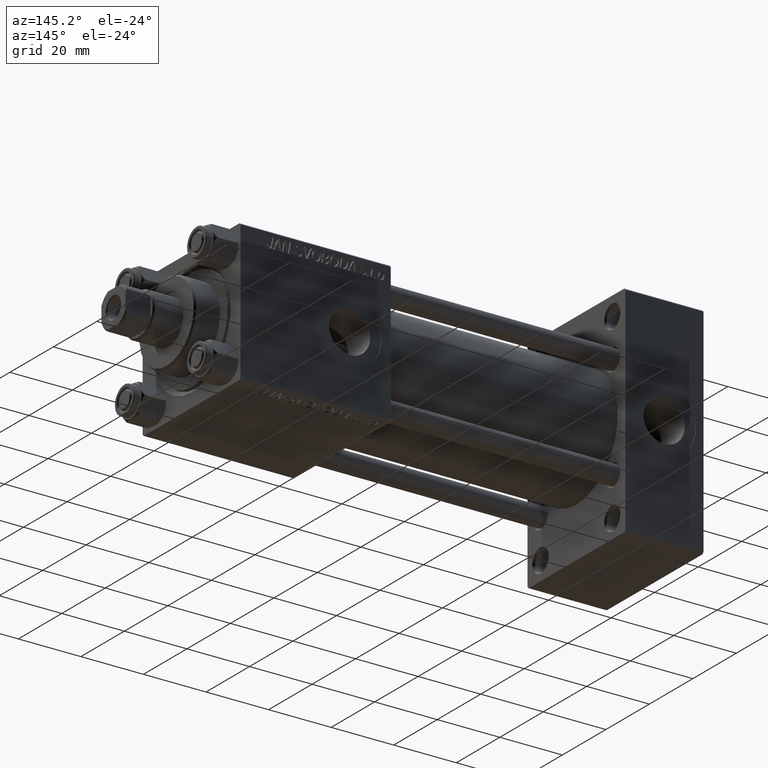
[diagram: clean part render]
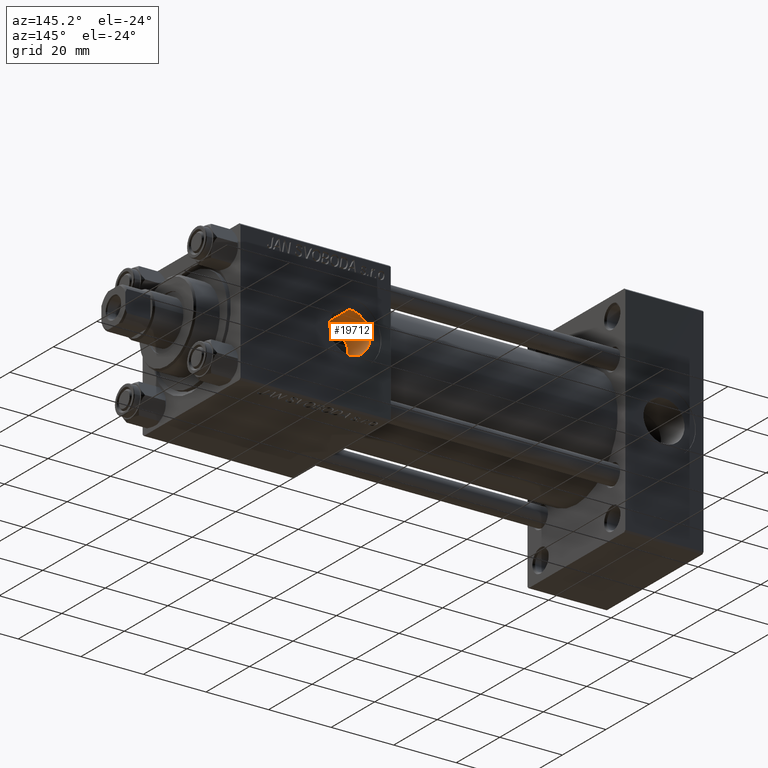
[diagram: same view with one face highlighted and labeled with its STEP entity id]
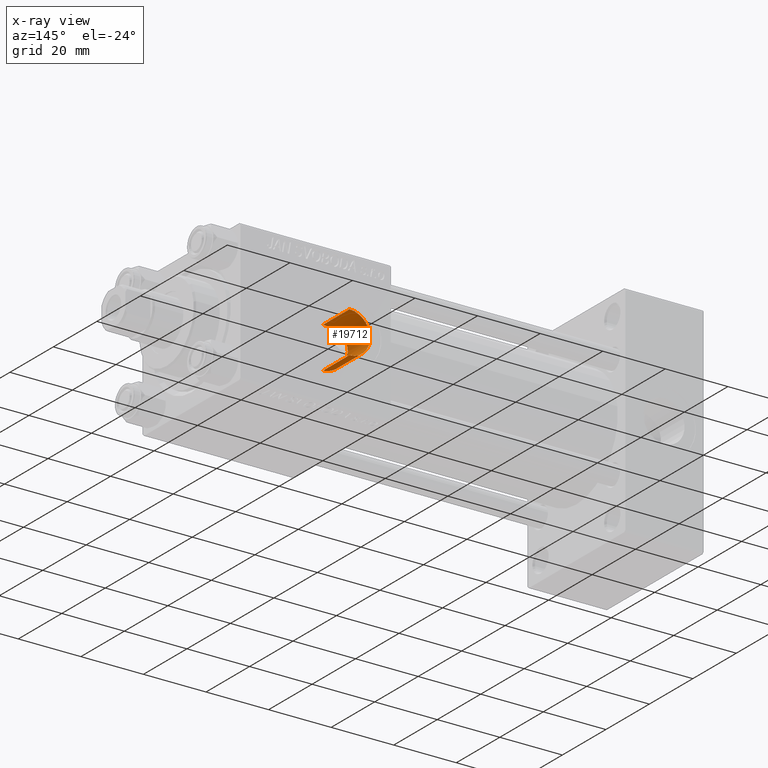
[diagram: x-ray of the same camera — body ghosted, the highlighted face saturated]
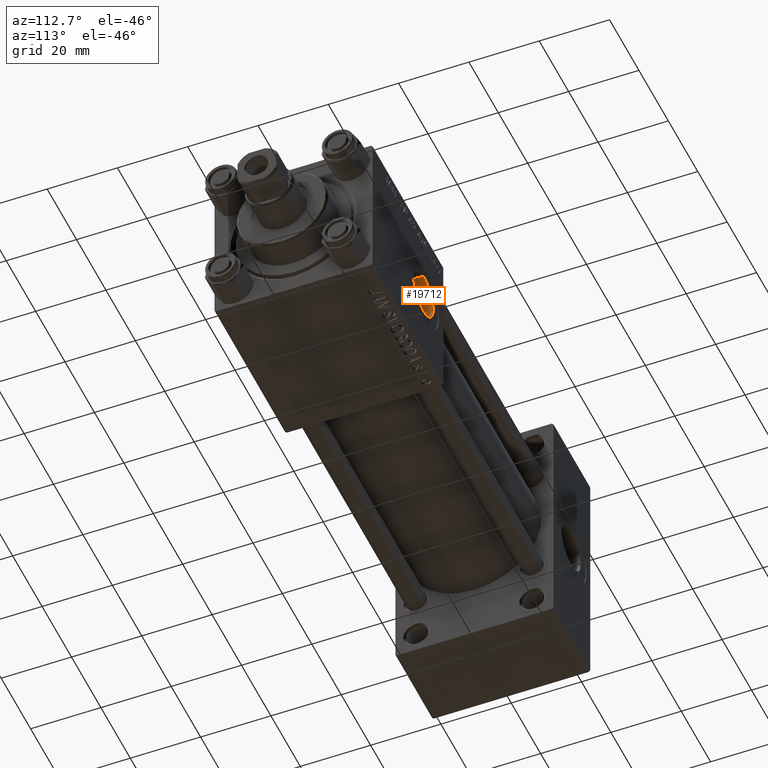
[diagram: same view with one face highlighted and labeled with its STEP entity id]
A machine part, auxiliary view. The second image highlights one B-rep face of the part: STEP entity #19712.
The next image is the same camera in x-ray: the body ghosted, the highlighted face saturated — about 0% of this face is hidden behind the body in this view.
A second angle (auxiliary view) of the same face is appended — the face is thin or edge-on in the first view.
In plain terms, the highlighted cylindrical surface (edge-blend (fillet) strip) has radius 6.58 mm, axis along (0, 1, 0).
Its self-contained STEP definition (entity closure, byte-faithful):
#731 = CARTESIAN_POINT ( 'NONE',  ( 109.6778844470711789, 10.56555453414760493, -5.695588259402676101 ) ) ;
#842 = EDGE_CURVE ( 'NONE', #35096, #30667, #21167, .T. ) ;
#973 = CARTESIAN_POINT ( 'NONE',  ( 106.4202108594641345, 11.99988437873642511, -0.4415083905740621595 ) ) ;
#1225 = CARTESIAN_POINT ( 'NONE',  ( 107.7822453497095125, 11.30859472950852584, -4.031762314489304444 ) ) ;
#1474 = CARTESIAN_POINT ( 'NONE',  ( 109.6939754610107229, 10.56415267499855304, 5.693150710628732014 ) ) ;
#1720 = CARTESIAN_POINT ( 'NONE',  ( 111.9026555007573904, 10.09272257990949839, -6.491501553408994596 ) ) ;
#2099 = DIRECTION ( 'NONE',  ( 0.000000000000000000, 0.000000000000000000, 1.000000000000000000 ) ) ;
#3030 = ORIENTED_EDGE ( 'NONE', *, *, #842, .F. ) ;
#5265 = CARTESIAN_POINT ( 'NONE',  ( 107.1050680583519039, 11.63756389590208862, 2.955633420251075894 ) ) ;
#5372 = DIRECTION ( 'NONE',  ( -0.000000000000000000, 1.000000000000000000, -0.000000000000000000 ) ) ;
#5511 = CARTESIAN_POINT ( 'NONE',  ( 110.2609984649942874, 10.40045460118916054, 5.986622394672212799 ) ) ;
#5755 = CARTESIAN_POINT ( 'NONE',  ( 107.3033527628750932, 11.53738015798572114, -3.320885605816854103 ) ) ;
#5862 = DIRECTION ( 'NONE',  ( 0.000000000000000000, 0.000000000000000000, 1.000000000000000000 ) ) ;
#6003 = DIRECTION ( 'NONE',  ( -0.000000000000000000, 1.000000000000000000, -0.000000000000000000 ) ) ;
#8805 = CARTESIAN_POINT ( 'NONE',  ( 108.9808194095023595, 10.80498217344098855, 5.227144681522187142 ) ) ;
#9054 = CARTESIAN_POINT ( 'NONE',  ( 112.1190907691257195, 10.07132008303893400, -6.524508665183240907 ) ) ;
#9163 = FACE_OUTER_BOUND ( 'NONE', #10479, .T. ) ;
#9958 = AXIS2_PLACEMENT_3D ( 'NONE', #40005, #5372, #5862 ) ;
#10479 = EDGE_LOOP ( 'NONE', ( #45542, #49099, #18895, #3030 ) ) ;
#12345 = CARTESIAN_POINT ( 'NONE',  ( 108.4966336964843094, 10.99844243115061460, -4.802106935643950081 ) ) ;
#12589 = CARTESIAN_POINT ( 'NONE',  ( 112.5587345323282449, 10.04242014431498475, -6.568903955922261062 ) ) ;
#12838 = CARTESIAN_POINT ( 'NONE',  ( 107.1004084834657704, 11.63995794439685483, -2.945230401312897150 ) ) ;
#13087 = CARTESIAN_POINT ( 'NONE',  ( 106.7670065677870355, 11.81240356407410275, 2.153087175559377453 ) ) ;
#13337 = CARTESIAN_POINT ( 'NONE',  ( 106.8515536459367041, 11.76868526175016250, -2.353465099783908610 ) ) ;
#14507 = EDGE_CURVE ( 'NONE', #46451, #35096, #19470, .T. ) ;
#16131 = CARTESIAN_POINT ( 'NONE',  ( 110.0690707820880618, 10.45284026323419191, 5.895033264191283706 ) ) ;
#16355 = LINE ( 'NONE', #27491, #45830 ) ;
#16380 = CARTESIAN_POINT ( 'NONE',  ( 108.6562621565032174, 10.93152481304933765, 4.960425101894940347 ) ) ;
#16631 = CARTESIAN_POINT ( 'NONE',  ( 111.2613787208470342, 10.17559587363118112, 6.361448434608369062 ) ) ;
#16884 = CARTESIAN_POINT ( 'NONE',  ( 106.4637862416631293, 11.97582117318680162, -0.8761294634005413196 ) ) ;
#17134 = CARTESIAN_POINT ( 'NONE',  ( 106.4646913180390584, 11.97532927873728958, 0.8814389111818397016 ) ) ;
#18895 = ORIENTED_EDGE ( 'NONE', *, *, #30762, .T. ) ;
#19470 = B_SPLINE_CURVE_WITH_KNOTS ( 'NONE', 3,
 ( #36095, #44164, #12589, #9054, #1720, #35349, #47467, #24959, #20433, #43921, #731, #40388, #46967, #43180, #12345, #47218, #1225, #5755, #12838, #13337, #36348, #28266, #24464, #16884, #973, #47718, #17134, #39901, #13087, #5265, #43669, #47967, #31798, #16380, #8805, #20678, #1474, #16131, #5511, #32551, #16631, #28514, #31545, #32298 ),
 .UNSPECIFIED., .F., .F.,
 ( 4, 2, 2, 2, 2, 2, 2, 2, 2, 2, 2, 2, 2, 2, 2, 2, 2, 2, 2, 2, 2, 4 ),
 ( 0.008590357070326631525, 0.009245933823934588541, 0.009901510577542547292, 0.01055708733115050431, 0.01121266408475846132, 0.01252381759197441352, 0.01317939434558237401, 0.01383497109919033449, 0.01514612460640625199, 0.01645727811362217297, 0.01711285486723013172, 0.01776843162083809047, 0.01907958512805401491, 0.02039073863526993241, 0.02170189214248585338, 0.02301304564970177435, 0.02432419915691769186, 0.02563535266413361630, 0.02629092941774158892, 0.02694650617134956155, 0.02825765967856552069, 0.02956881318578147289 ),
 .UNSPECIFIED. ) ;
#19712 = ADVANCED_FACE ( 'NONE', ( #9163 ), #25065, .F. ) ;
#20433 = CARTESIAN_POINT ( 'NONE',  ( 110.6469863642564349, 10.30549409996672239, -6.148672400876415089 ) ) ;
#20678 = CARTESIAN_POINT ( 'NONE',  ( 109.5099310316933270, 10.62340520694157497, 5.582197786858912103 ) ) ;
#21145 = VECTOR ( 'NONE', #6003, 1000.000000000000000 ) ;
#21167 = LINE ( 'NONE', #25199, #21145 ) ;
#24464 = CARTESIAN_POINT ( 'NONE',  ( 106.5947815601323327, 11.90500205299394310, -1.522465113034440432 ) ) ;
#24843 = CARTESIAN_POINT ( 'NONE',  ( 113.0000000000000000, 22.30000000000000426, 0.000000000000000000 ) ) ;
#24959 = CARTESIAN_POINT ( 'NONE',  ( 110.8520087302309065, 10.26041674852086949, -6.223301258735684627 ) ) ;
#25065 = CYLINDRICAL_SURFACE ( 'NONE', #9958, 6.580000000000002736 ) ;
#25199 = CARTESIAN_POINT ( 'NONE',  ( 113.0000000000000000, -18.61105048082993818, 6.580000000000002736 ) ) ;
#25636 = CARTESIAN_POINT ( 'NONE',  ( 113.0000000000000000, 22.30000000000000426, -6.580000000000002736 ) ) ;
#27436 = CARTESIAN_POINT ( 'NONE',  ( 113.0000000000000000, 10.03511833512689755, 6.580000000000002736 ) ) ;
#27491 = CARTESIAN_POINT ( 'NONE',  ( 113.0000000000000000, -18.61105048082993818, -6.580000000000002736 ) ) ;
#28026 = CIRCLE ( 'NONE', #45763, 6.580000000000002736 ) ;
#28266 = CARTESIAN_POINT ( 'NONE',  ( 106.6495807290173019, 11.87554090734247758, -1.736573327823575985 ) ) ;
#28514 = CARTESIAN_POINT ( 'NONE',  ( 112.1257057613069321, 10.06401201544136903, 6.536546467569312568 ) ) ;
#30667 = VERTEX_POINT ( 'NONE', #40516 ) ;
#30762 = EDGE_CURVE ( 'NONE', #45936, #30667, #28026, .T. ) ;
#31545 = CARTESIAN_POINT ( 'NONE',  ( 112.5626811284030850, 10.03511833512689400, 6.579999999999999183 ) ) ;
#31773 = DIRECTION ( 'NONE',  ( -0.000000000000000000, 1.000000000000000000, -0.000000000000000000 ) ) ;
#31798 = CARTESIAN_POINT ( 'NONE',  ( 108.0591469749664668, 11.18222718872542920, 4.365987520544764244 ) ) ;
#32298 = CARTESIAN_POINT ( 'NONE',  ( 113.0000000000000000, 10.03511833512689755, 6.580000000000002736 ) ) ;
#32551 = CARTESIAN_POINT ( 'NONE',  ( 110.8504201772063595, 10.25569107496388987, 6.233555566934210646 ) ) ;
#34793 = CARTESIAN_POINT ( 'NONE',  ( 113.0000000000000000, 10.03511833512689755, -6.580000000000002736 ) ) ;
#35096 = VERTEX_POINT ( 'NONE', #27436 ) ;
#35349 = CARTESIAN_POINT ( 'NONE',  ( 111.4761413384147914, 10.14795690498758773, -6.404811640278047058 ) ) ;
#36095 = CARTESIAN_POINT ( 'NONE',  ( 113.0000000000000000, 10.03511833512689755, -6.580000000000002736 ) ) ;
#36348 = CARTESIAN_POINT ( 'NONE',  ( 106.7778289807484242, 11.80745777538545482, -2.151301849430347080 ) ) ;
#39901 = CARTESIAN_POINT ( 'NONE',  ( 106.6385484795074206, 11.88134324111738493, 1.737564006038945452 ) ) ;
#40005 = CARTESIAN_POINT ( 'NONE',  ( 113.0000000000000000, -18.61105048082993818, 0.000000000000000000 ) ) ;
#40094 = EDGE_CURVE ( 'NONE', #46451, #45936, #16355, .T. ) ;
#40388 = CARTESIAN_POINT ( 'NONE',  ( 109.1502487701440600, 10.74694874131891353, -5.340483106436813898 ) ) ;
#40516 = CARTESIAN_POINT ( 'NONE',  ( 113.0000000000000000, 22.30000000000000426, 6.580000000000002736 ) ) ;
#43180 = CARTESIAN_POINT ( 'NONE',  ( 108.6524179147616991, 10.93537140601615576, -4.943653615015846547 ) ) ;
#43669 = CARTESIAN_POINT ( 'NONE',  ( 107.3095047893206555, 11.53436838845257917, 3.330952691599677884 ) ) ;
#43921 = CARTESIAN_POINT ( 'NONE',  ( 110.0510431280197707, 10.45235325324470388, -5.897951781794918524 ) ) ;
#44164 = CARTESIAN_POINT ( 'NONE',  ( 112.7808140535749146, 10.03511833512689400, -6.580000000000003624 ) ) ;
#45542 = ORIENTED_EDGE ( 'NONE', *, *, #14507, .F. ) ;
#45763 = AXIS2_PLACEMENT_3D ( 'NONE', #24843, #47850, #2099 ) ;
#45830 = VECTOR ( 'NONE', #31773, 1000.000000000000000 ) ;
#45936 = VERTEX_POINT ( 'NONE', #25636 ) ;
#46451 = VERTEX_POINT ( 'NONE', #34793 ) ;
#46967 = CARTESIAN_POINT ( 'NONE',  ( 108.9790530252927283, 10.80966661710888133, -5.212788743056521845 ) ) ;
#47218 = CARTESIAN_POINT ( 'NONE',  ( 108.0508812765204851, 11.18591469348257306, -4.356510094204550043 ) ) ;
#47467 = CARTESIAN_POINT ( 'NONE',  ( 111.2660629811777824, 10.18178878898818596, -6.351126472267992540 ) ) ;
#47718 = CARTESIAN_POINT ( 'NONE',  ( 106.4197906521533241, 12.00011479239335088, 0.4352007943146000701 ) ) ;
#47850 = DIRECTION ( 'NONE',  ( 0.000000000000000000, 1.000000000000000000, 0.000000000000000000 ) ) ;
#47967 = CARTESIAN_POINT ( 'NONE',  ( 107.7852272363605977, 11.30724428648134428, 4.035235631291475222 ) ) ;
#49099 = ORIENTED_EDGE ( 'NONE', *, *, #40094, .T. ) ;